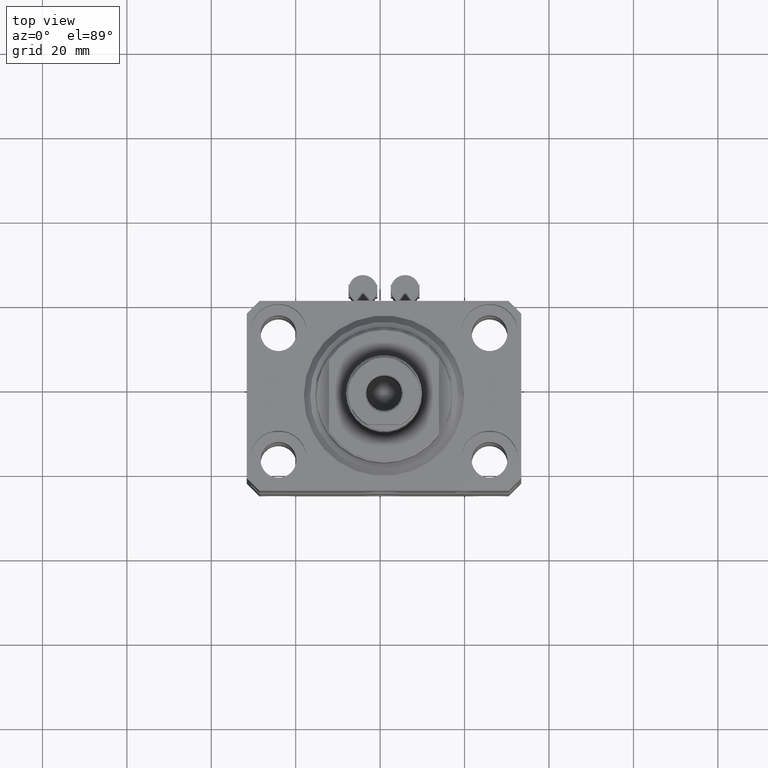
[diagram: clean part render]
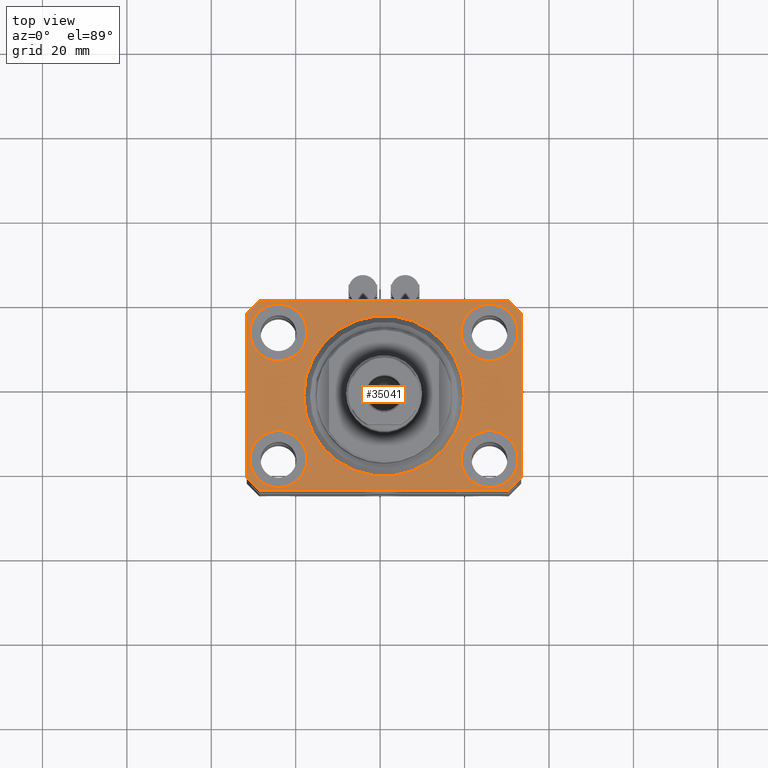
[diagram: same view with one face highlighted and labeled with its STEP entity id]
A machine part, top view. The second image highlights one B-rep face of the part: STEP entity #35041.
In plain terms, the highlighted planar face has unit normal (0, 0, 1).
Its self-contained STEP definition (entity closure, byte-faithful):
#37 = EDGE_CURVE ( 'NONE', #25857, #28575, #31901, .T. ) ;
#82 = AXIS2_PLACEMENT_3D ( 'NONE', #36253, #40150, #42697 ) ;
#494 = CARTESIAN_POINT ( 'NONE',  ( 32.49999999999702993, 19.49999999999945999, 0.000000000000000000 ) ) ;
#549 = VERTEX_POINT ( 'NONE', #19326 ) ;
#622 = ORIENTED_EDGE ( 'NONE', *, *, #12636, .T. ) ;
#1092 = LINE ( 'NONE', #28605, #30555 ) ;
#2190 = FACE_BOUND ( 'NONE', #34178, .T. ) ;
#2436 = DIRECTION ( 'NONE',  ( 0.000000000000000000, 0.000000000000000000, 1.000000000000000000 ) ) ;
#2458 = ORIENTED_EDGE ( 'NONE', *, *, #45123, .F. ) ;
#2717 = AXIS2_PLACEMENT_3D ( 'NONE', #4187, #41370, #10203 ) ;
#2853 = FACE_BOUND ( 'NONE', #25923, .T. ) ;
#3420 = EDGE_CURVE ( 'NONE', #549, #41466, #19337, .T. ) ;
#4187 = CARTESIAN_POINT ( 'NONE',  ( -25.00000000000000355, 15.00000000000000000, 0.000000000000000000 ) ) ;
#4686 = ORIENTED_EDGE ( 'NONE', *, *, #44550, .F. ) ;
#5258 = EDGE_CURVE ( 'NONE', #40482, #34116, #36047, .T. ) ;
#5447 = ORIENTED_EDGE ( 'NONE', *, *, #14287, .T. ) ;
#5501 = EDGE_CURVE ( 'NONE', #34116, #549, #28216, .T. ) ;
#5539 = DIRECTION ( 'NONE',  ( 1.000000000000000000, 0.000000000000000000, 0.000000000000000000 ) ) ;
#5854 = ORIENTED_EDGE ( 'NONE', *, *, #32245, .F. ) ;
#5977 = ORIENTED_EDGE ( 'NONE', *, *, #16219, .F. ) ;
#6071 = CARTESIAN_POINT ( 'NONE',  ( 0.000000000000000000, 0.000000000000000000, 0.000000000000000000 ) ) ;
#6315 = DIRECTION ( 'NONE',  ( 1.000000000000000000, 0.000000000000000000, 0.000000000000000000 ) ) ;
#6475 = CIRCLE ( 'NONE', #32102, 19.00000000000000000 ) ;
#6543 = VECTOR ( 'NONE', #33854, 1000.000000000000000 ) ;
#7228 = ORIENTED_EDGE ( 'NONE', *, *, #37, .F. ) ;
#7273 = CARTESIAN_POINT ( 'NONE',  ( -29.49999999999650413, -22.49999999999949907, 0.000000000000000000 ) ) ;
#7422 = EDGE_CURVE ( 'NONE', #10283, #39454, #6475, .T. ) ;
#7541 = ORIENTED_EDGE ( 'NONE', *, *, #5501, .T. ) ;
#8579 = CIRCLE ( 'NONE', #21762, 6.749999999958452790 ) ;
#8669 = CARTESIAN_POINT ( 'NONE',  ( -18.24999999997747224, 15.00000000000000000, 0.000000000000000000 ) ) ;
#8765 = LINE ( 'NONE', #16102, #40894 ) ;
#9219 = CARTESIAN_POINT ( 'NONE',  ( -32.49999999999650413, -19.49999999999949907, 0.000000000000000000 ) ) ;
#9387 = VECTOR ( 'NONE', #18184, 1000.000000000000000 ) ;
#9727 = FACE_BOUND ( 'NONE', #35478, .T. ) ;
#10179 = VERTEX_POINT ( 'NONE', #7273 ) ;
#10182 = CARTESIAN_POINT ( 'NONE',  ( -32.49999999999650413, 19.49999999999949907, 0.000000000000000000 ) ) ;
#10203 = DIRECTION ( 'NONE',  ( 1.000000000000000000, 0.000000000000000000, 0.000000000000000000 ) ) ;
#10283 = VERTEX_POINT ( 'NONE', #22587 ) ;
#10419 = LINE ( 'NONE', #10182, #6543 ) ;
#10680 = EDGE_LOOP ( 'NONE', ( #13903, #5447, #35354, #16319, #622, #37334, #41353, #7541 ) ) ;
#10734 = CARTESIAN_POINT ( 'NONE',  ( -25.00000000000000355, 15.00000000000000000, 0.000000000000000000 ) ) ;
#10788 = CARTESIAN_POINT ( 'NONE',  ( 25.00000000000000355, -15.00000000000000000, 0.000000000000000000 ) ) ;
#11539 = EDGE_LOOP ( 'NONE', ( #18196, #34285 ) ) ;
#11971 = DIRECTION ( 'NONE',  ( 0.000000000000000000, 0.000000000000000000, 1.000000000000000000 ) ) ;
#12152 = AXIS2_PLACEMENT_3D ( 'NONE', #12772, #43951, #23072 ) ;
#12284 = EDGE_CURVE ( 'NONE', #19403, #41885, #38084, .T. ) ;
#12308 = ORIENTED_EDGE ( 'NONE', *, *, #16206, .F. ) ;
#12636 = EDGE_CURVE ( 'NONE', #10179, #41201, #38977, .T. ) ;
#12725 = PLANE ( 'NONE',  #14547 ) ;
#12767 = CARTESIAN_POINT ( 'NONE',  ( -19.00000000000000000, 2.326828918379970970E-15, 0.000000000000000000 ) ) ;
#12772 = CARTESIAN_POINT ( 'NONE',  ( -25.00000000000000355, -15.00000000000000000, 0.000000000000000000 ) ) ;
#13427 = CARTESIAN_POINT ( 'NONE',  ( -31.75000000004154899, -15.00000000000000000, 0.000000000000000000 ) ) ;
#13903 = ORIENTED_EDGE ( 'NONE', *, *, #3420, .T. ) ;
#14287 = EDGE_CURVE ( 'NONE', #41466, #43579, #31149, .T. ) ;
#14445 = CIRCLE ( 'NONE', #2717, 6.750000000022533087 ) ;
#14547 = AXIS2_PLACEMENT_3D ( 'NONE', #6071, #33797, #26683 ) ;
#15140 = ORIENTED_EDGE ( 'NONE', *, *, #7422, .F. ) ;
#15503 = CARTESIAN_POINT ( 'NONE',  ( 31.74999999997746869, -15.00000000000000000, 0.000000000000000000 ) ) ;
#15842 = CARTESIAN_POINT ( 'NONE',  ( -31.75000000002253842, 15.00000000000000000, 0.000000000000000000 ) ) ;
#16102 = CARTESIAN_POINT ( 'NONE',  ( -32.49999999999650413, -19.49999999999949907, 0.000000000000000000 ) ) ;
#16169 = FACE_OUTER_BOUND ( 'NONE', #10680, .T. ) ;
#16206 = EDGE_CURVE ( 'NONE', #39454, #10283, #27108, .T. ) ;
#16219 = EDGE_CURVE ( 'NONE', #28575, #25857, #35201, .T. ) ;
#16319 = ORIENTED_EDGE ( 'NONE', *, *, #35382, .T. ) ;
#16830 = FACE_BOUND ( 'NONE', #17971, .T. ) ;
#17580 = VECTOR ( 'NONE', #38037, 1000.000000000000114 ) ;
#17897 = DIRECTION ( 'NONE',  ( 0.000000000000000000, 0.000000000000000000, 1.000000000000000000 ) ) ;
#17971 = EDGE_LOOP ( 'NONE', ( #15140, #12308 ) ) ;
#18184 = DIRECTION ( 'NONE',  ( 1.334402673828349134E-14, 1.000000000000000000, 0.000000000000000000 ) ) ;
#18196 = ORIENTED_EDGE ( 'NONE', *, *, #32359, .F. ) ;
#18907 = CARTESIAN_POINT ( 'NONE',  ( 18.25000000002253842, -15.00000000000000000, 0.000000000000000000 ) ) ;
#19326 = CARTESIAN_POINT ( 'NONE',  ( 29.49999999999707967, 22.49999999999951328, 0.000000000000000000 ) ) ;
#19337 = LINE ( 'NONE', #22995, #31272 ) ;
#19403 = VERTEX_POINT ( 'NONE', #25733 ) ;
#19759 = CARTESIAN_POINT ( 'NONE',  ( 29.49999999999650413, -22.49999999999949196, 0.000000000000000000 ) ) ;
#20359 = CIRCLE ( 'NONE', #27697, 6.750000000022533087 ) ;
#21103 = DIRECTION ( 'NONE',  ( 1.000000000000000000, 0.000000000000000000, 0.000000000000000000 ) ) ;
#21252 = VERTEX_POINT ( 'NONE', #9219 ) ;
#21549 = DIRECTION ( 'NONE',  ( 1.000000000000000000, 0.000000000000000000, 0.000000000000000000 ) ) ;
#21701 = CARTESIAN_POINT ( 'NONE',  ( -32.49999999999650413, 19.49999999999949907, 0.000000000000000000 ) ) ;
#21762 = AXIS2_PLACEMENT_3D ( 'NONE', #44364, #2436, #6315 ) ;
#21839 = VERTEX_POINT ( 'NONE', #18907 ) ;
#22587 = CARTESIAN_POINT ( 'NONE',  ( 19.00000000000000000, 0.000000000000000000, 0.000000000000000000 ) ) ;
#22955 = DIRECTION ( 'NONE',  ( 0.7071067811865474617, -0.7071067811865474617, 0.000000000000000000 ) ) ;
#22995 = CARTESIAN_POINT ( 'NONE',  ( 29.49999999999707967, 22.49999999999951328, 0.000000000000000000 ) ) ;
#23072 = DIRECTION ( 'NONE',  ( 1.000000000000000000, 0.000000000000000000, 0.000000000000000000 ) ) ;
#23997 = VECTOR ( 'NONE', #38764, 1000.000000000000000 ) ;
#25733 = CARTESIAN_POINT ( 'NONE',  ( 18.25000000004154543, 15.00000000000000888, 0.000000000000000000 ) ) ;
#25857 = VERTEX_POINT ( 'NONE', #13427 ) ;
#25923 = EDGE_LOOP ( 'NONE', ( #5977, #7228 ) ) ;
#25937 = DIRECTION ( 'NONE',  ( 0.000000000000000000, 0.000000000000000000, 1.000000000000000000 ) ) ;
#26580 = CARTESIAN_POINT ( 'NONE',  ( -29.49999999999650413, 22.49999999999949907, 0.000000000000000000 ) ) ;
#26683 = DIRECTION ( 'NONE',  ( 1.000000000000000000, 0.000000000000000000, -0.000000000000000000 ) ) ;
#27108 = CIRCLE ( 'NONE', #32264, 19.00000000000000000 ) ;
#27697 = AXIS2_PLACEMENT_3D ( 'NONE', #10734, #28389, #42374 ) ;
#28216 = LINE ( 'NONE', #494, #23997 ) ;
#28389 = DIRECTION ( 'NONE',  ( 0.000000000000000000, 0.000000000000000000, 1.000000000000000000 ) ) ;
#28575 = VERTEX_POINT ( 'NONE', #34811 ) ;
#28605 = CARTESIAN_POINT ( 'NONE',  ( 29.49999999999650413, -22.49999999999949196, 0.000000000000000000 ) ) ;
#28759 = CARTESIAN_POINT ( 'NONE',  ( 31.74999999995845101, 15.00000000000000888, 0.000000000000000000 ) ) ;
#29391 = CARTESIAN_POINT ( 'NONE',  ( 0.000000000000000000, 0.000000000000000000, 0.000000000000000000 ) ) ;
#29475 = VERTEX_POINT ( 'NONE', #15842 ) ;
#30011 = CARTESIAN_POINT ( 'NONE',  ( 25.00000000000000355, -15.00000000000000000, 0.000000000000000000 ) ) ;
#30052 = AXIS2_PLACEMENT_3D ( 'NONE', #39929, #25937, #5539 ) ;
#30361 = FACE_BOUND ( 'NONE', #11539, .T. ) ;
#30555 = VECTOR ( 'NONE', #32695, 1000.000000000000000 ) ;
#30812 = CIRCLE ( 'NONE', #35203, 6.749999999977465137 ) ;
#31001 = ORIENTED_EDGE ( 'NONE', *, *, #12284, .F. ) ;
#31149 = LINE ( 'NONE', #41033, #17580 ) ;
#31272 = VECTOR ( 'NONE', #33311, 1000.000000000000000 ) ;
#31312 = CARTESIAN_POINT ( 'NONE',  ( 32.49999999999651124, -19.49999999999949196, 0.000000000000000000 ) ) ;
#31901 = CIRCLE ( 'NONE', #12152, 6.750000000041541881 ) ;
#32083 = DIRECTION ( 'NONE',  ( 1.000000000000000000, 1.176083712526788232E-16, 0.000000000000000000 ) ) ;
#32102 = AXIS2_PLACEMENT_3D ( 'NONE', #41066, #37840, #21103 ) ;
#32133 = EDGE_CURVE ( 'NONE', #41201, #40482, #1092, .T. ) ;
#32245 = EDGE_CURVE ( 'NONE', #41885, #19403, #8579, .T. ) ;
#32264 = AXIS2_PLACEMENT_3D ( 'NONE', #29391, #11971, #39711 ) ;
#32359 = EDGE_CURVE ( 'NONE', #37807, #29475, #14445, .T. ) ;
#32440 = CARTESIAN_POINT ( 'NONE',  ( 32.49999999999702993, 19.49999999999945999, 0.000000000000000000 ) ) ;
#32695 = DIRECTION ( 'NONE',  ( 0.7071067811865483499, 0.7071067811865466846, 0.000000000000000000 ) ) ;
#33311 = DIRECTION ( 'NONE',  ( -1.000000000000000000, -2.352167425053553784E-16, 0.000000000000000000 ) ) ;
#33797 = DIRECTION ( 'NONE',  ( 0.000000000000000000, 0.000000000000000000, 1.000000000000000000 ) ) ;
#33854 = DIRECTION ( 'NONE',  ( 0.000000000000000000, -1.000000000000000000, 0.000000000000000000 ) ) ;
#34116 = VERTEX_POINT ( 'NONE', #32440 ) ;
#34178 = EDGE_LOOP ( 'NONE', ( #5854, #31001 ) ) ;
#34285 = ORIENTED_EDGE ( 'NONE', *, *, #39340, .F. ) ;
#34811 = CARTESIAN_POINT ( 'NONE',  ( -18.24999999995846167, -15.00000000000000000, 0.000000000000000000 ) ) ;
#35041 = ADVANCED_FACE ( 'NONE', ( #2853, #9727, #2190, #30361, #16830, #16169 ), #12725, .T. ) ;
#35061 = CARTESIAN_POINT ( 'NONE',  ( -29.49999999999650413, -22.49999999999949907, 0.000000000000000000 ) ) ;
#35201 = CIRCLE ( 'NONE', #82, 6.750000000041541881 ) ;
#35203 = AXIS2_PLACEMENT_3D ( 'NONE', #10788, #17897, #21549 ) ;
#35354 = ORIENTED_EDGE ( 'NONE', *, *, #41799, .T. ) ;
#35382 = EDGE_CURVE ( 'NONE', #21252, #10179, #8765, .T. ) ;
#35478 = EDGE_LOOP ( 'NONE', ( #2458, #4686 ) ) ;
#35822 = VECTOR ( 'NONE', #32083, 1000.000000000000000 ) ;
#36047 = LINE ( 'NONE', #42716, #9387 ) ;
#36253 = CARTESIAN_POINT ( 'NONE',  ( -25.00000000000000355, -15.00000000000000000, 0.000000000000000000 ) ) ;
#37239 = VERTEX_POINT ( 'NONE', #15503 ) ;
#37334 = ORIENTED_EDGE ( 'NONE', *, *, #32133, .T. ) ;
#37807 = VERTEX_POINT ( 'NONE', #8669 ) ;
#37840 = DIRECTION ( 'NONE',  ( 0.000000000000000000, 0.000000000000000000, 1.000000000000000000 ) ) ;
#38037 = DIRECTION ( 'NONE',  ( -0.7071067811865474617, -0.7071067811865474617, 0.000000000000000000 ) ) ;
#38079 = CIRCLE ( 'NONE', #42485, 6.749999999977465137 ) ;
#38084 = CIRCLE ( 'NONE', #30052, 6.749999999958452790 ) ;
#38764 = DIRECTION ( 'NONE',  ( -0.7071067811865352493, 0.7071067811865597852, 0.000000000000000000 ) ) ;
#38977 = LINE ( 'NONE', #35061, #35822 ) ;
#39340 = EDGE_CURVE ( 'NONE', #29475, #37807, #20359, .T. ) ;
#39454 = VERTEX_POINT ( 'NONE', #12767 ) ;
#39711 = DIRECTION ( 'NONE',  ( 1.000000000000000000, 0.000000000000000000, 0.000000000000000000 ) ) ;
#39929 = CARTESIAN_POINT ( 'NONE',  ( 24.99999999999999645, 15.00000000000000888, 0.000000000000000000 ) ) ;
#40150 = DIRECTION ( 'NONE',  ( 0.000000000000000000, 0.000000000000000000, 1.000000000000000000 ) ) ;
#40482 = VERTEX_POINT ( 'NONE', #31312 ) ;
#40894 = VECTOR ( 'NONE', #22955, 1000.000000000000114 ) ;
#40995 = DIRECTION ( 'NONE',  ( 0.000000000000000000, 0.000000000000000000, 1.000000000000000000 ) ) ;
#41033 = CARTESIAN_POINT ( 'NONE',  ( -29.49999999999650413, 22.49999999999949907, 0.000000000000000000 ) ) ;
#41066 = CARTESIAN_POINT ( 'NONE',  ( 0.000000000000000000, 0.000000000000000000, 0.000000000000000000 ) ) ;
#41201 = VERTEX_POINT ( 'NONE', #19759 ) ;
#41353 = ORIENTED_EDGE ( 'NONE', *, *, #5258, .T. ) ;
#41370 = DIRECTION ( 'NONE',  ( 0.000000000000000000, 0.000000000000000000, 1.000000000000000000 ) ) ;
#41466 = VERTEX_POINT ( 'NONE', #26580 ) ;
#41799 = EDGE_CURVE ( 'NONE', #43579, #21252, #10419, .T. ) ;
#41885 = VERTEX_POINT ( 'NONE', #28759 ) ;
#42374 = DIRECTION ( 'NONE',  ( 1.000000000000000000, 0.000000000000000000, 0.000000000000000000 ) ) ;
#42485 = AXIS2_PLACEMENT_3D ( 'NONE', #30011, #40995, #44891 ) ;
#42697 = DIRECTION ( 'NONE',  ( 1.000000000000000000, 0.000000000000000000, 0.000000000000000000 ) ) ;
#42716 = CARTESIAN_POINT ( 'NONE',  ( 32.49999999999651124, -19.49999999999949196, 0.000000000000000000 ) ) ;
#43579 = VERTEX_POINT ( 'NONE', #21701 ) ;
#43951 = DIRECTION ( 'NONE',  ( 0.000000000000000000, 0.000000000000000000, 1.000000000000000000 ) ) ;
#44364 = CARTESIAN_POINT ( 'NONE',  ( 24.99999999999999645, 15.00000000000000888, 0.000000000000000000 ) ) ;
#44550 = EDGE_CURVE ( 'NONE', #21839, #37239, #38079, .T. ) ;
#44891 = DIRECTION ( 'NONE',  ( 1.000000000000000000, 0.000000000000000000, 0.000000000000000000 ) ) ;
#45123 = EDGE_CURVE ( 'NONE', #37239, #21839, #30812, .T. ) ;